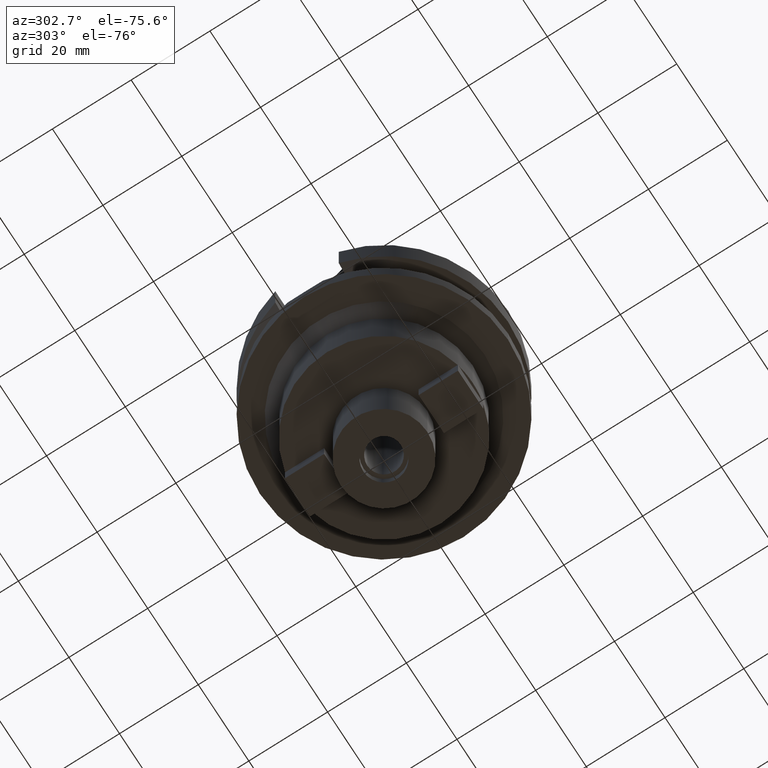
[diagram: clean part render]
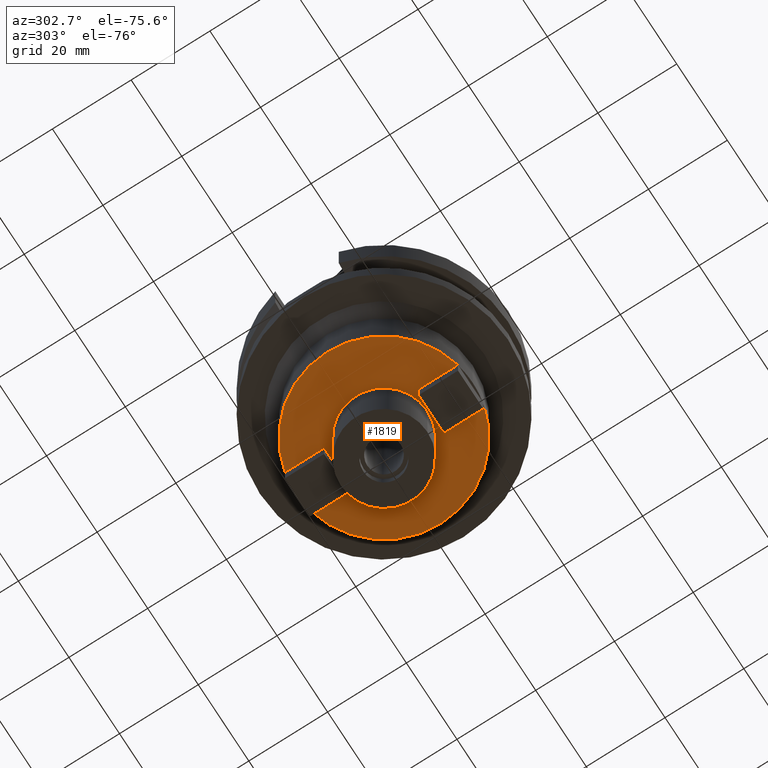
[diagram: same view with one face highlighted and labeled with its STEP entity id]
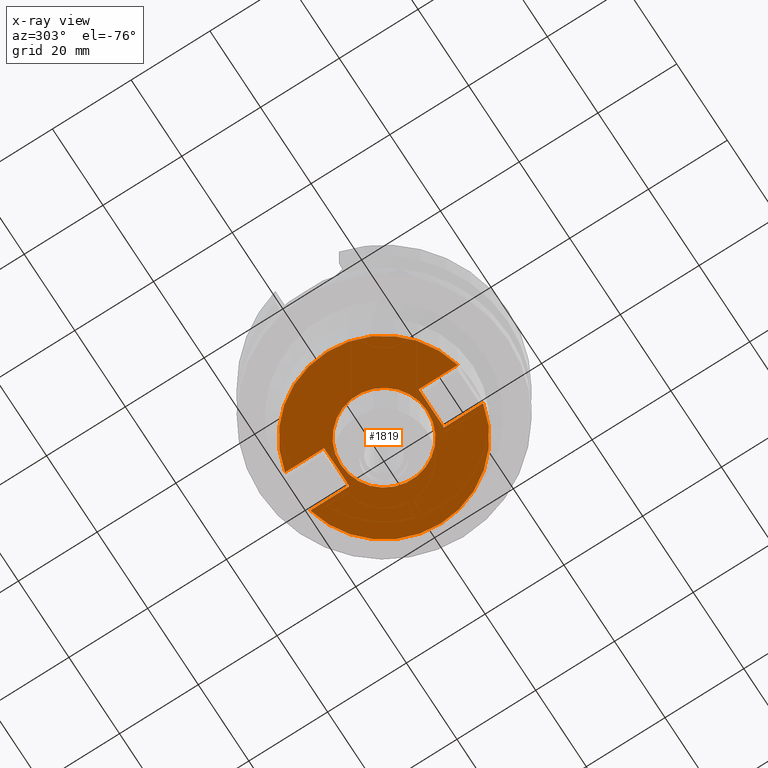
[diagram: x-ray of the same camera — body ghosted, the highlighted face saturated]
A machine part, auxiliary view. The second image highlights one B-rep face of the part: STEP entity #1819.
The next image is the same camera in x-ray: the body ghosted, the highlighted face saturated — about 0% of this face is hidden behind the body in this view.
In plain terms, the highlighted planar face has unit normal (0, 0, -1).
Its self-contained STEP definition (entity closure, byte-faithful):
#338=DIRECTION('',(0.E0,-1.E0,0.E0));
#339=VECTOR('',#338,9.937410968480E0);
#340=CARTESIAN_POINT('',(5.E0,-1.2E1,-4.5E1));
#341=LINE('',#340,#339);
#345=CARTESIAN_POINT('',(0.E0,2.104188130295E-14,-4.5E1));
#346=DIRECTION('',(0.E0,0.E0,1.E0));
#347=DIRECTION('',(2.222222222222E-1,-9.749960430436E-1,0.E0));
#348=AXIS2_PLACEMENT_3D('',#345,#346,#347);
#353=DIRECTION('',(-1.E0,0.E0,0.E0));
#354=VECTOR('',#353,1.E1);
#355=CARTESIAN_POINT('',(5.E0,1.2E1,-4.5E1));
#356=LINE('',#355,#354);
#360=DIRECTION('',(1.564101796137E-14,1.E0,0.E0));
#361=VECTOR('',#360,9.937410968480E0);
#362=CARTESIAN_POINT('',(-5.E0,1.2E1,-4.5E1));
#363=LINE('',#362,#361);
#367=CARTESIAN_POINT('',(0.E0,2.104188130295E-14,-4.5E1));
#368=DIRECTION('',(0.E0,0.E0,1.E0));
#369=DIRECTION('',(-2.222222222222E-1,9.749960430436E-1,0.E0));
#370=AXIS2_PLACEMENT_3D('',#367,#368,#369);
#375=DIRECTION('',(1.E0,0.E0,0.E0));
#376=VECTOR('',#375,1.E1);
#377=CARTESIAN_POINT('',(-5.E0,-1.2E1,-4.5E1));
#378=LINE('',#377,#376);
#382=CARTESIAN_POINT('',(0.E0,2.104188130295E-14,-4.5E1));
#383=DIRECTION('',(0.E0,0.E0,-1.E0));
#384=DIRECTION('',(0.E0,-1.E0,0.E0));
#385=AXIS2_PLACEMENT_3D('',#382,#383,#384);
#390=CARTESIAN_POINT('',(0.E0,2.104188130295E-14,-4.5E1));
#391=DIRECTION('',(0.E0,0.E0,-1.E0));
#392=DIRECTION('',(0.E0,1.E0,0.E0));
#393=AXIS2_PLACEMENT_3D('',#390,#391,#392);
#412=DIRECTION('',(0.E0,-1.E0,0.E0));
#413=VECTOR('',#412,9.937410968480E0);
#414=CARTESIAN_POINT('',(-5.E0,-1.2E1,-4.5E1));
#415=LINE('',#414,#413);
#491=DIRECTION('',(0.E0,1.E0,0.E0));
#492=VECTOR('',#491,9.937410968480E0);
#493=CARTESIAN_POINT('',(5.E0,1.2E1,-4.5E1));
#494=LINE('',#493,#492);
#1337=CARTESIAN_POINT('',(0.E0,1.1E1,-4.5E1));
#1338=VERTEX_POINT('',#1337);
#1339=CARTESIAN_POINT('',(0.E0,-1.1E1,-4.5E1));
#1340=VERTEX_POINT('',#1339);
#1347=CARTESIAN_POINT('',(5.E0,-1.2E1,-4.5E1));
#1348=CARTESIAN_POINT('',(5.E0,-2.193741096848E1,-4.5E1));
#1349=VERTEX_POINT('',#1347);
#1350=VERTEX_POINT('',#1348);
#1351=CARTESIAN_POINT('',(5.E0,2.193741096848E1,-4.5E1));
#1352=VERTEX_POINT('',#1351);
#1353=CARTESIAN_POINT('',(5.E0,1.2E1,-4.5E1));
#1354=VERTEX_POINT('',#1353);
#1355=CARTESIAN_POINT('',(-5.E0,1.2E1,-4.5E1));
#1356=VERTEX_POINT('',#1355);
#1357=CARTESIAN_POINT('',(-5.E0,2.193741096848E1,-4.5E1));
#1358=VERTEX_POINT('',#1357);
#1359=CARTESIAN_POINT('',(-5.E0,-2.193741096848E1,-4.5E1));
#1360=VERTEX_POINT('',#1359);
#1361=CARTESIAN_POINT('',(-5.E0,-1.2E1,-4.5E1));
#1362=VERTEX_POINT('',#1361);
#1792=CARTESIAN_POINT('',(0.E0,0.E0,-4.5E1));
#1793=DIRECTION('',(0.E0,0.E0,-1.E0));
#1794=DIRECTION('',(0.E0,-1.E0,0.E0));
#1795=AXIS2_PLACEMENT_3D('',#1792,#1793,#1794);
#1796=PLANE('',#1795);
#1798=ORIENTED_EDGE('',*,*,#1797,.T.);
#1800=ORIENTED_EDGE('',*,*,#1799,.T.);
#1802=ORIENTED_EDGE('',*,*,#1801,.F.);
#1804=ORIENTED_EDGE('',*,*,#1803,.T.);
#1806=ORIENTED_EDGE('',*,*,#1805,.T.);
#1808=ORIENTED_EDGE('',*,*,#1807,.T.);
#1810=ORIENTED_EDGE('',*,*,#1809,.F.);
#1812=ORIENTED_EDGE('',*,*,#1811,.T.);
#1813=EDGE_LOOP('',(#1798,#1800,#1802,#1804,#1806,#1808,#1810,#1812));
#1814=FACE_OUTER_BOUND('',#1813,.F.);
#1815=ORIENTED_EDGE('',*,*,#1785,.T.);
#1816=ORIENTED_EDGE('',*,*,#1774,.T.);
#1817=EDGE_LOOP('',(#1815,#1816));
#1818=FACE_BOUND('',#1817,.F.);
#349=CIRCLE('',#348,2.25E1);
#371=CIRCLE('',#370,2.25E1);
#386=CIRCLE('',#385,1.1E1);
#394=CIRCLE('',#393,1.1E1);
#1774=EDGE_CURVE('',#1338,#1340,#394,.T.);
#1785=EDGE_CURVE('',#1340,#1338,#386,.T.);
#1797=EDGE_CURVE('',#1349,#1350,#341,.T.);
#1799=EDGE_CURVE('',#1350,#1352,#349,.T.);
#1801=EDGE_CURVE('',#1354,#1352,#494,.T.);
#1803=EDGE_CURVE('',#1354,#1356,#356,.T.);
#1805=EDGE_CURVE('',#1356,#1358,#363,.T.);
#1807=EDGE_CURVE('',#1358,#1360,#371,.T.);
#1809=EDGE_CURVE('',#1362,#1360,#415,.T.);
#1811=EDGE_CURVE('',#1362,#1349,#378,.T.);
#1819=ADVANCED_FACE('',(#1814,#1818),#1796,.T.);